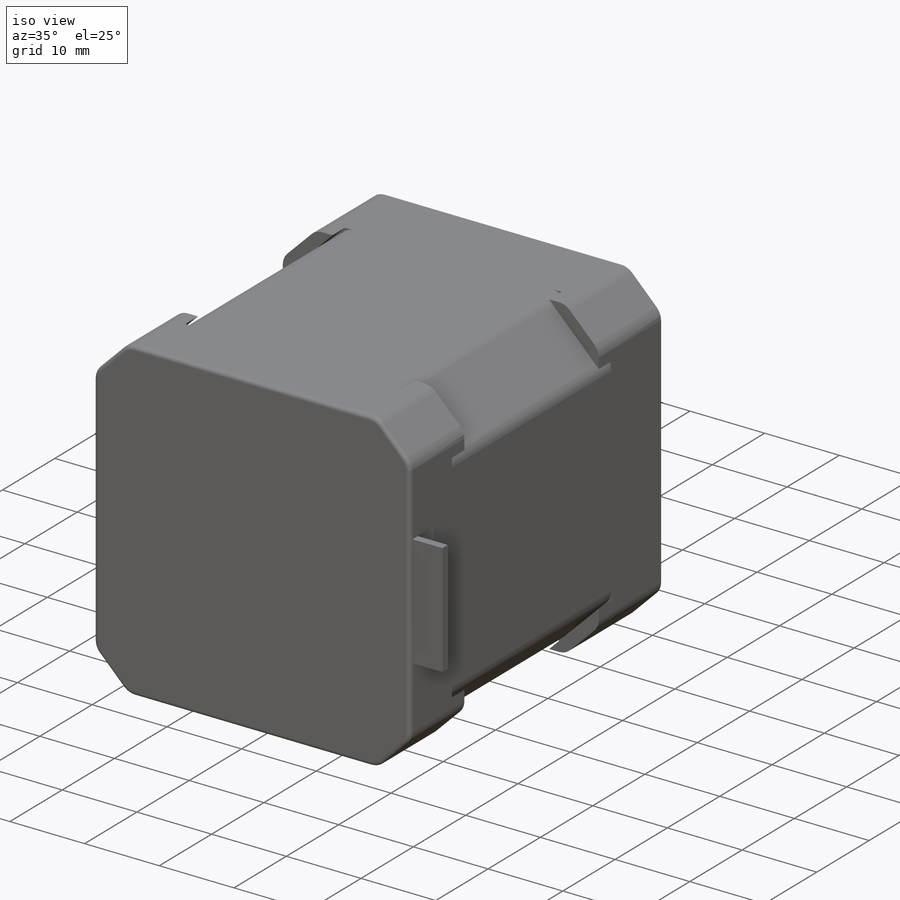
[diagram: iso view]
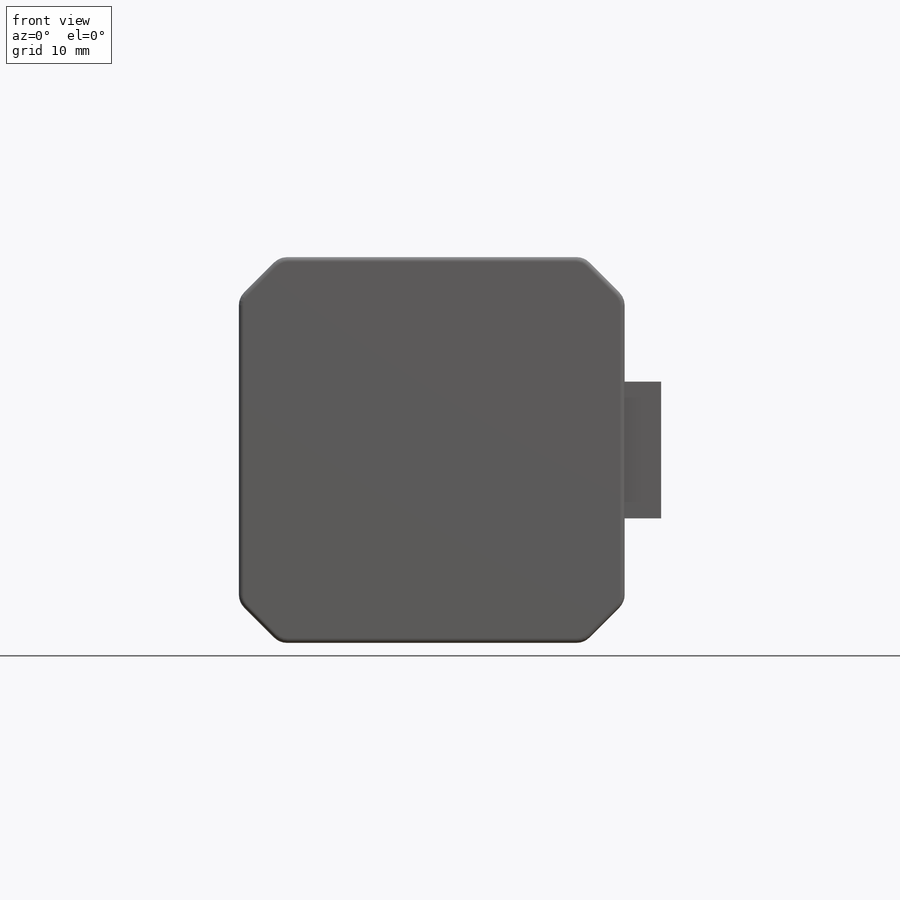
[diagram: front view]
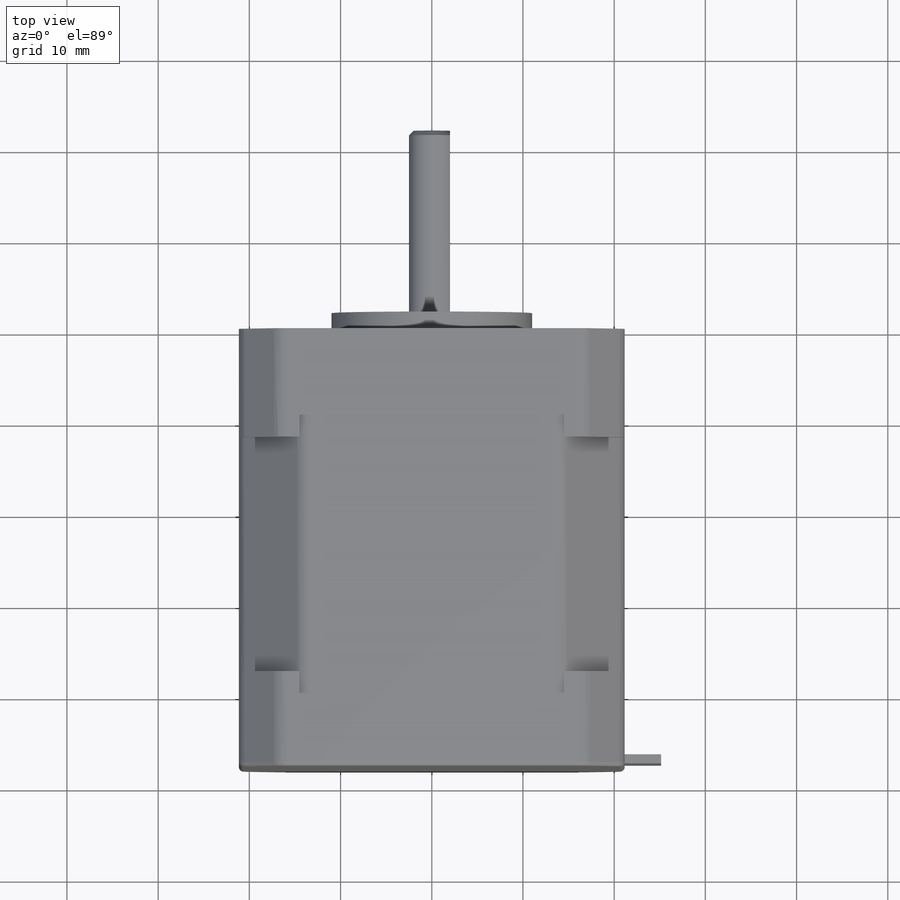
[diagram: top view]
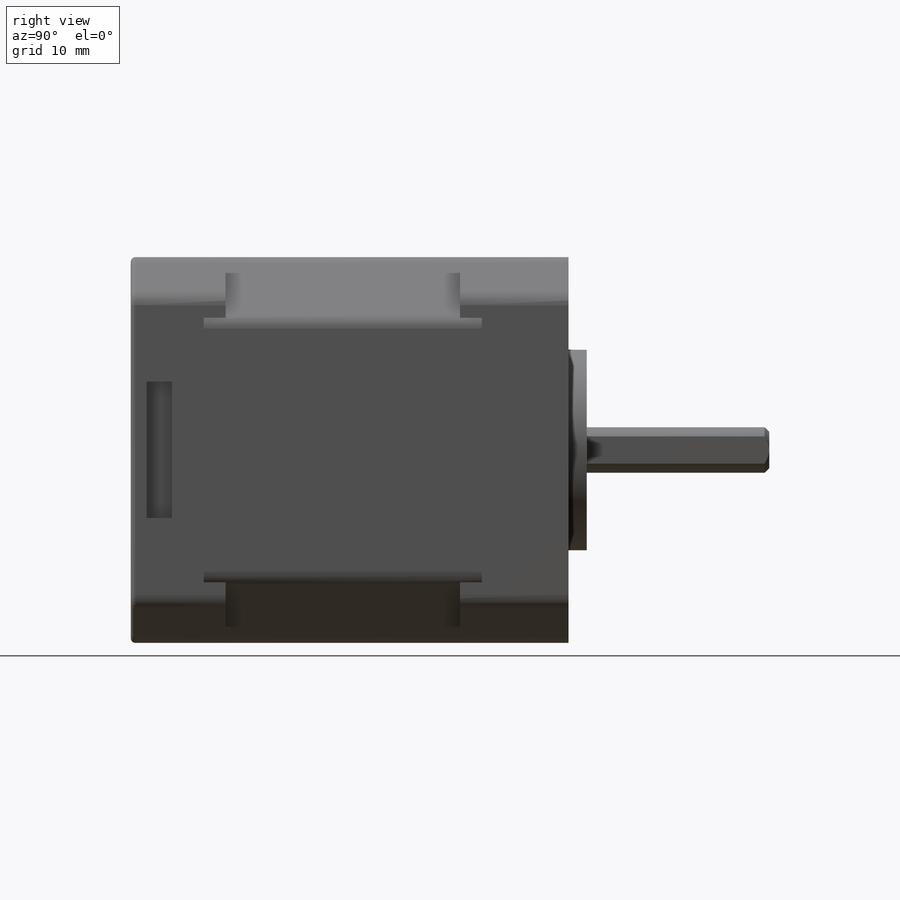
[diagram: right view]
SOLIDWORKS PART (.sldprt)
format: sldprt  version: not decoded by parser v0  size: 1,260,544 bytes
history: native  units: mm
features: sketch x14, extrude x12, plane x6, thread x4, chamfer x2, fillet x2, material x1, hole x1 (+13 scaffold rows collapsed; 23 parser-record rows omitted)
feature tree (78):
  scaffold x13  (default folders/planes/origin — collapsed)
  material  "1060 Alloy"
  plane  "Plane1"
  sketch  "Sketch1"
  parser-record x23  (decoder bookkeeping rows leaked as tree rows — omitted from the tree; the rows remain in map.json)
  extrude  "Extrusion1"  Depth=48mm
  chamfer  "Chamfer1"  Distance=7mm
  sketch  "Sketch2"
  extrude  "Extrusion2"  Depth=8mm
  sketch  "Sketch3"
  extrude  "Extrusion3"  Depth=9.5mm
  plane  "Plane2"
  sketch  "Sketch4"
  extrude  "Extrusion4"  Depth=2.4mm
  plane  "Plane3"
  sketch  "Sketch5"
  extrude  "Extrusion5"  Depth=2.4mm
  fillet  "Fillet1"  Radius=0.5mm
  fillet  "Fillet2"  Radius=2mm
  sketch  "Sketch6"
  extrude  "Extrusion6"  Depth=2mm
  plane  "Plane4"
  sketch  "Sketch7"
  extrude  "Extrusion7"  Depth=0.4mm
  sketch  "Sketch8"
  extrude  "Extrusion8"  Depth=20mm
  chamfer  "Chamfer2"  Distance=0.5mm
  plane  "Plane5"
  sketch  "Sketch9"
  extrude  "Extrusion9"  Depth=3mm
  hole  "Hole1"  Diameter=2.459mm Depth=4.5mm
  sketch  "Sketch11"
  sketch  "Sketch10"  dims[c1.D1=~97.659253deg c1.D2=~82.982399deg c1.Diameter=2.459mm c2.D2=100.0mm c2.D3=~82.982399deg c2.D4=90.0deg c3.D3=~97.716715deg c3.Depth=4.5mm c3.Drill Angle=118.0deg]
  thread  "Cosmetic Thread1"  Diameter=4.5mm  [1 undecoded]
  thread  "Cosmetic Thread2"  Diameter=4.5mm  [1 undecoded]
  thread  "Cosmetic Thread3"  Diameter=4.5mm  [1 undecoded]
  thread  "Cosmetic Thread4"  Diameter=4.5mm  [1 undecoded]
  sketch  "Sketch12"
  extrude  "Extrusion10"  Depth=20mm
  sketch  "Sketch13"
  extrude  "Extrusion11"  Depth=4mm
  plane  "Plane6"
  sketch  "Sketch14"
  extrude  "Extrusion12"  Depth=6mm
decode coverage: 22 of 35 modeling features carry decoded parameters
note: ~ marks probable driven/reference dimensions
note: 4 parameter values undecoded
note: suppression state not decoded; provenance and decode notes live in map.json
